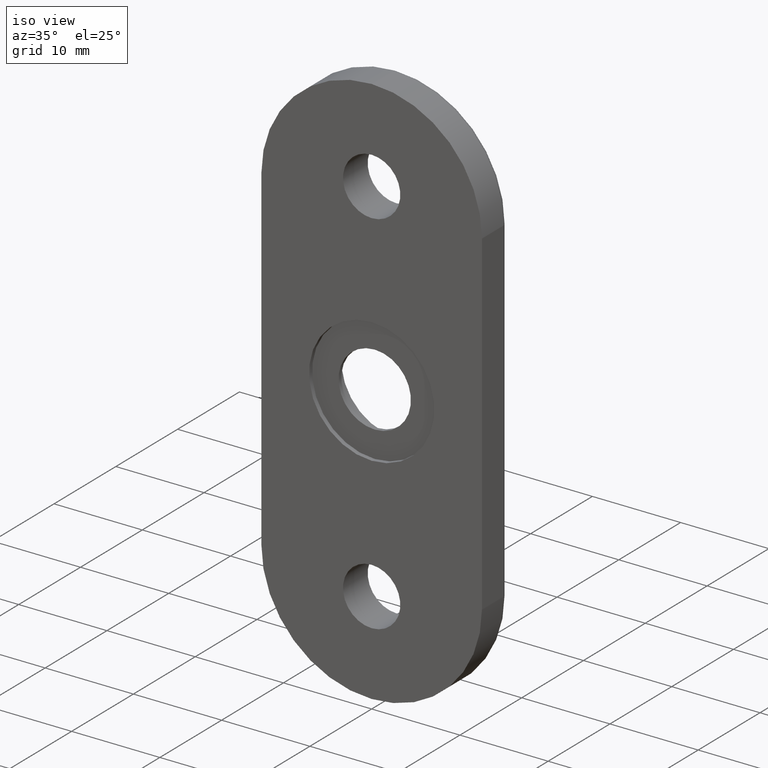
[diagram: clean part render]
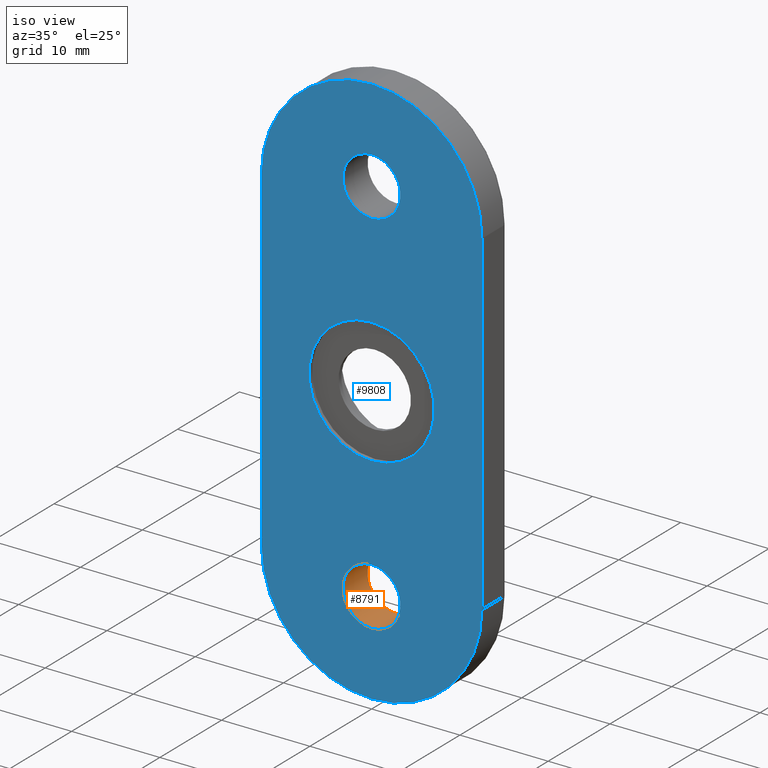
[diagram: same view with the hole feature highlighted: cylindrical wall and planar end face, labeled with their STEP entity ids]
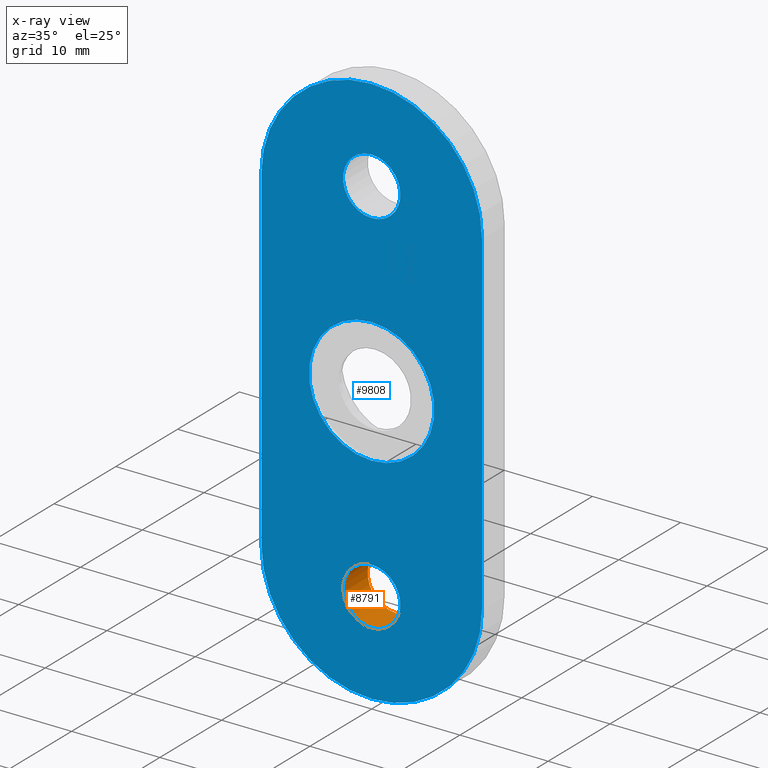
[diagram: x-ray of the same camera — body ghosted, the hole faces saturated]
A machine part, iso view. The highlighted faces form one hole feature of diameter 6.5 mm: the cylindrical wall (entity #8791, orange) and its adjacent planar end face (entity #9808, blue) — they share a circular edge in the B-rep.
The next image is the same camera in x-ray (body ghosted, the hole faces saturated) — the bore reads through the body.
Wall:
#119 = CARTESIAN_POINT ( 'NONE',  ( 0.000000000000000000, 0.000000000000000000, -21.00000000000000000 ) ) ;
#372 = CIRCLE ( 'NONE', #2077, 3.249999999999999556 ) ;
#723 = CARTESIAN_POINT ( 'NONE',  ( 0.000000000000000000, 4.000000000000000000, -21.00000000000000000 ) ) ;
#790 = CARTESIAN_POINT ( 'NONE',  ( 0.000000000000000000, 4.000000000000000000, -17.75000000000000355 ) ) ;
#1399 = AXIS2_PLACEMENT_3D ( 'NONE', #9185, #13953, #15006 ) ;
#2049 = EDGE_LOOP ( 'NONE', ( #11472 ) ) ;
#2077 = AXIS2_PLACEMENT_3D ( 'NONE', #723, #10087, #13450 ) ;
#2122 = EDGE_CURVE ( 'NONE', #5935, #5935, #13382, .T. ) ;
#3467 = DIRECTION ( 'NONE',  ( 0.000000000000000000, 0.000000000000000000, 1.000000000000000000 ) ) ;
#4569 = CYLINDRICAL_SURFACE ( 'NONE', #1399, 3.249999999999999556 ) ;
#5935 = VERTEX_POINT ( 'NONE', #6657 ) ;
#6103 = VERTEX_POINT ( 'NONE', #790 ) ;
#6657 = CARTESIAN_POINT ( 'NONE',  ( 0.000000000000000000, 0.000000000000000000, -17.75000000000000355 ) ) ;
#6934 = FACE_OUTER_BOUND ( 'NONE', #2049, .T. ) ;
#7031 = EDGE_CURVE ( 'NONE', #6103, #6103, #372, .T. ) ;
#8345 = ORIENTED_EDGE ( 'NONE', *, *, #2122, .F. ) ;
#8590 = AXIS2_PLACEMENT_3D ( 'NONE', #119, #11647, #3467 ) ;
#8791 = ADVANCED_FACE ( 'NONE', ( #14891, #6934 ), #4569, .F. ) ;
#9185 = CARTESIAN_POINT ( 'NONE',  ( 0.000000000000000000, 0.000000000000000000, -21.00000000000000000 ) ) ;
#10087 = DIRECTION ( 'NONE',  ( 0.000000000000000000, 1.000000000000000000, 0.000000000000000000 ) ) ;
#11472 = ORIENTED_EDGE ( 'NONE', *, *, #7031, .T. ) ;
#11647 = DIRECTION ( 'NONE',  ( 0.000000000000000000, 1.000000000000000000, 0.000000000000000000 ) ) ;
#12170 = EDGE_LOOP ( 'NONE', ( #8345 ) ) ;
#13382 = CIRCLE ( 'NONE', #8590, 3.249999999999999556 ) ;
#13450 = DIRECTION ( 'NONE',  ( 0.000000000000000000, 0.000000000000000000, 1.000000000000000000 ) ) ;
#13953 = DIRECTION ( 'NONE',  ( -0.000000000000000000, 1.000000000000000000, -0.000000000000000000 ) ) ;
#14891 = FACE_OUTER_BOUND ( 'NONE', #12170, .T. ) ;
#15006 = DIRECTION ( 'NONE',  ( 0.000000000000000000, 0.000000000000000000, 1.000000000000000000 ) ) ;
End face:
#119 = CARTESIAN_POINT ( 'NONE',  ( 0.000000000000000000, 0.000000000000000000, -21.00000000000000000 ) ) ;
#428 = AXIS2_PLACEMENT_3D ( 'NONE', #12826, #4802, #4897 ) ;
#452 = CARTESIAN_POINT ( 'NONE',  ( -12.50000000000000000, 0.000000000000000000, 31.50000000000000000 ) ) ;
#741 = VERTEX_POINT ( 'NONE', #10444 ) ;
#767 = VECTOR ( 'NONE', #4381, 1000.000000000000000 ) ;
#1602 = VERTEX_POINT ( 'NONE', #4231 ) ;
#1834 = FACE_OUTER_BOUND ( 'NONE', #11938, .T. ) ;
#1996 = LINE ( 'NONE', #452, #7453 ) ;
#2122 = EDGE_CURVE ( 'NONE', #5935, #5935, #13382, .T. ) ;
#2544 = ORIENTED_EDGE ( 'NONE', *, *, #11741, .T. ) ;
#2751 = CIRCLE ( 'NONE', #13846, 12.50000000000000000 ) ;
#3467 = DIRECTION ( 'NONE',  ( 0.000000000000000000, 0.000000000000000000, 1.000000000000000000 ) ) ;
#3539 = ORIENTED_EDGE ( 'NONE', *, *, #4277, .T. ) ;
#3620 = EDGE_CURVE ( 'NONE', #14880, #13454, #7001, .T. ) ;
#3729 = AXIS2_PLACEMENT_3D ( 'NONE', #5101, #14346, #11914 ) ;
#3796 = AXIS2_PLACEMENT_3D ( 'NONE', #5975, #14065, #7043 ) ;
#4231 = CARTESIAN_POINT ( 'NONE',  ( -12.50000000000000000, 0.000000000000000000, 19.00000000000000000 ) ) ;
#4277 = EDGE_CURVE ( 'NONE', #13308, #14880, #9310, .T. ) ;
#4381 = DIRECTION ( 'NONE',  ( -0.000000000000000000, -0.000000000000000000, -1.000000000000000000 ) ) ;
#4751 = CARTESIAN_POINT ( 'NONE',  ( -12.50000000000000000, 0.000000000000000000, -19.00000000000000355 ) ) ;
#4802 = DIRECTION ( 'NONE',  ( 0.000000000000000000, 1.000000000000000000, 0.000000000000000000 ) ) ;
#4897 = DIRECTION ( 'NONE',  ( 0.000000000000000000, 0.000000000000000000, 1.000000000000000000 ) ) ;
#4943 = FACE_BOUND ( 'NONE', #6752, .T. ) ;
#5101 = CARTESIAN_POINT ( 'NONE',  ( 0.000000000000000000, 0.000000000000000000, -19.00000000000000355 ) ) ;
#5323 = AXIS2_PLACEMENT_3D ( 'NONE', #8753, #14403, #7607 ) ;
#5452 = EDGE_CURVE ( 'NONE', #9853, #741, #13853, .T. ) ;
#5560 = ORIENTED_EDGE ( 'NONE', *, *, #12353, .F. ) ;
#5657 = CARTESIAN_POINT ( 'NONE',  ( 12.50000000000000000, 0.000000000000000000, 19.00000000000000000 ) ) ;
#5715 = CARTESIAN_POINT ( 'NONE',  ( 0.000000000000000000, 0.000000000000000000, 19.00000000000000000 ) ) ;
#5935 = VERTEX_POINT ( 'NONE', #6657 ) ;
#5975 = CARTESIAN_POINT ( 'NONE',  ( 0.000000000000000000, 0.000000000000000000, 19.00000000000000000 ) ) ;
#6657 = CARTESIAN_POINT ( 'NONE',  ( 0.000000000000000000, 0.000000000000000000, -17.75000000000000355 ) ) ;
#6752 = EDGE_LOOP ( 'NONE', ( #11308 ) ) ;
#7001 = CIRCLE ( 'NONE', #3729, 12.50000000000000000 ) ;
#7043 = DIRECTION ( 'NONE',  ( 0.000000000000000000, 0.000000000000000000, 1.000000000000000000 ) ) ;
#7453 = VECTOR ( 'NONE', #8600, 1000.000000000000000 ) ;
#7516 = LINE ( 'NONE', #10126, #767 ) ;
#7607 = DIRECTION ( 'NONE',  ( 0.000000000000000000, 0.000000000000000000, -1.000000000000000000 ) ) ;
#7783 = CARTESIAN_POINT ( 'NONE',  ( 0.000000000000000000, 0.000000000000000000, -7.099999999999999645 ) ) ;
#7959 = CARTESIAN_POINT ( 'NONE',  ( -12.50000000000000000, 0.000000000000000000, 31.50000000000000000 ) ) ;
#8409 = CIRCLE ( 'NONE', #428, 3.249999999999999556 ) ;
#8590 = AXIS2_PLACEMENT_3D ( 'NONE', #119, #11647, #3467 ) ;
#8600 = DIRECTION ( 'NONE',  ( -0.000000000000000000, -0.000000000000000000, -1.000000000000000000 ) ) ;
#8753 = CARTESIAN_POINT ( 'NONE',  ( 0.000000000000000000, 0.000000000000000000, 0.000000000000000000 ) ) ;
#8766 = EDGE_CURVE ( 'NONE', #11870, #11870, #9972, .T. ) ;
#8956 = DIRECTION ( 'NONE',  ( -0.000000000000000000, -1.000000000000000000, -0.000000000000000000 ) ) ;
#9189 = ORIENTED_EDGE ( 'NONE', *, *, #3620, .T. ) ;
#9310 = CIRCLE ( 'NONE', #9907, 12.50000000000000000 ) ;
#9462 = ORIENTED_EDGE ( 'NONE', *, *, #8766, .F. ) ;
#9808 = ADVANCED_FACE ( 'NONE', ( #11617, #4943, #11436, #1834 ), #14841, .F. ) ;
#9853 = VERTEX_POINT ( 'NONE', #5657 ) ;
#9907 = AXIS2_PLACEMENT_3D ( 'NONE', #11214, #8956, #9933 ) ;
#9933 = DIRECTION ( 'NONE',  ( 8.881784197001252323E-16, 0.000000000000000000, 1.000000000000000000 ) ) ;
#9972 = CIRCLE ( 'NONE', #5323, 7.099999999999999645 ) ;
#9980 = EDGE_CURVE ( 'NONE', #741, #1602, #2751, .T. ) ;
#10126 = CARTESIAN_POINT ( 'NONE',  ( 12.50000000000000000, 0.000000000000000000, 31.50000000000000000 ) ) ;
#10444 = CARTESIAN_POINT ( 'NONE',  ( 0.000000000000000000, 0.000000000000000000, 31.50000000000000000 ) ) ;
#10512 = DIRECTION ( 'NONE',  ( -0.000000000000000000, -1.000000000000000000, -0.000000000000000000 ) ) ;
#10754 = ORIENTED_EDGE ( 'NONE', *, *, #5452, .T. ) ;
#10774 = CARTESIAN_POINT ( 'NONE',  ( 12.50000000000000000, 0.000000000000000000, -19.00000000000000355 ) ) ;
#11144 = VERTEX_POINT ( 'NONE', #11182 ) ;
#11182 = CARTESIAN_POINT ( 'NONE',  ( 0.000000000000000000, 0.000000000000000000, 24.25000000000000000 ) ) ;
#11194 = EDGE_LOOP ( 'NONE', ( #9462 ) ) ;
#11214 = CARTESIAN_POINT ( 'NONE',  ( 0.000000000000000000, 0.000000000000000000, -19.00000000000000355 ) ) ;
#11308 = ORIENTED_EDGE ( 'NONE', *, *, #13304, .T. ) ;
#11318 = DIRECTION ( 'NONE',  ( 0.000000000000000000, -0.000000000000000000, 1.000000000000000000 ) ) ;
#11436 = FACE_BOUND ( 'NONE', #11194, .T. ) ;
#11557 = DIRECTION ( 'NONE',  ( 0.000000000000000000, 0.000000000000000000, 1.000000000000000000 ) ) ;
#11617 = FACE_BOUND ( 'NONE', #13632, .T. ) ;
#11647 = DIRECTION ( 'NONE',  ( 0.000000000000000000, 1.000000000000000000, 0.000000000000000000 ) ) ;
#11741 = EDGE_CURVE ( 'NONE', #1602, #13308, #1996, .T. ) ;
#11870 = VERTEX_POINT ( 'NONE', #7783 ) ;
#11914 = DIRECTION ( 'NONE',  ( 0.000000000000000000, 0.000000000000000000, 1.000000000000000000 ) ) ;
#11938 = EDGE_LOOP ( 'NONE', ( #3539, #9189, #5560, #10754, #13059, #2544 ) ) ;
#12353 = EDGE_CURVE ( 'NONE', #9853, #13454, #7516, .T. ) ;
#12479 = DIRECTION ( 'NONE',  ( 0.000000000000000000, 1.000000000000000000, 0.000000000000000000 ) ) ;
#12572 = ORIENTED_EDGE ( 'NONE', *, *, #2122, .T. ) ;
#12826 = CARTESIAN_POINT ( 'NONE',  ( 0.000000000000000000, 0.000000000000000000, 21.00000000000000000 ) ) ;
#13049 = AXIS2_PLACEMENT_3D ( 'NONE', #7959, #12479, #11318 ) ;
#13059 = ORIENTED_EDGE ( 'NONE', *, *, #9980, .T. ) ;
#13304 = EDGE_CURVE ( 'NONE', #11144, #11144, #8409, .T. ) ;
#13308 = VERTEX_POINT ( 'NONE', #4751 ) ;
#13382 = CIRCLE ( 'NONE', #8590, 3.249999999999999556 ) ;
#13454 = VERTEX_POINT ( 'NONE', #10774 ) ;
#13632 = EDGE_LOOP ( 'NONE', ( #12572 ) ) ;
#13846 = AXIS2_PLACEMENT_3D ( 'NONE', #5715, #10512, #11557 ) ;
#13853 = CIRCLE ( 'NONE', #3796, 12.50000000000000000 ) ;
#13984 = CARTESIAN_POINT ( 'NONE',  ( 0.000000000000000000, 0.000000000000000000, -31.50000000000000000 ) ) ;
#14065 = DIRECTION ( 'NONE',  ( -0.000000000000000000, -1.000000000000000000, -0.000000000000000000 ) ) ;
#14346 = DIRECTION ( 'NONE',  ( -0.000000000000000000, -1.000000000000000000, -0.000000000000000000 ) ) ;
#14403 = DIRECTION ( 'NONE',  ( -0.000000000000000000, -1.000000000000000000, -0.000000000000000000 ) ) ;
#14841 = PLANE ( 'NONE',  #13049 ) ;
#14880 = VERTEX_POINT ( 'NONE', #13984 ) ;